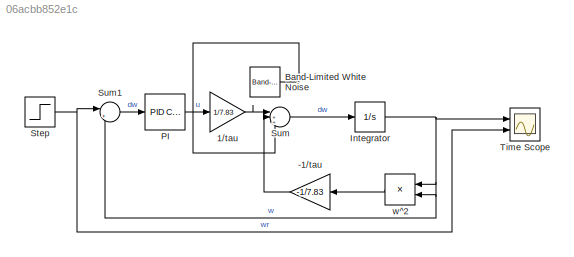
MODEL slx_06acbb852e1c
KIND model
CONFIG AbsTol = auto
CONFIG EnableMultiTasking = off
CONFIG FixedStep = auto
CONFIG MaxStep = auto
CONFIG MinStep = auto
CONFIG RelTol = 1e-3
CONFIG SampleTimeConstraint = Unconstrained
CONFIG Solver = VariableStepAuto
CONFIG SolverName = VariableStepAuto
CONFIG StartTime = 0.0
CONFIG StopTime = 60
BLOCK [Gain] -1//tau
  Gain = -1/7.83
BLOCK [Gain] 1//tau
  Gain = 1/7.83
BLOCK [Reference] Band-Limited White Noise  REF=simulink/Sources/Band-Limited
White Noise
  Ports = [0, 1]
  SourceBlock = simulink/Sources/Band-Limited\nWhite Noise
  SourceProductBaseCode = SL
  SourceType = Band-Limited White Noise.
BLOCK [Integrator] Integrator
  Ports = [1, 1]
BLOCK [Reference] PI  REF=simulink/Continuous/PID Controller
  Ports = [1, 1]
  SourceBlock = simulink/Continuous/PID Controller
  SourceProductBaseCode = SL
  SourceType = PID 1dof
BLOCK [Step] Step
  SampleTime = 0
  Time = 0
BLOCK [Sum] Sum
  Inputs = |+++
  Ports = [3, 1]
BLOCK [Sum] Sum1
  Inputs = |+-
  Ports = [2, 1]
BLOCK [Scope] Time Scope
  DefaultConfigurationName = spbscopes.TimeScopeBlockCfg
  Floating = off
  NumInputPorts = 2
  Ports = [2]
  ScopeSpecificationString = spbscopes.TimeScopeBlockCfg('CurrentConfiguration', extmgr.ConfigurationSet(extmgr.Configuration('Core','General UI',true),extmgr.Configuration('Core','Source UI',true),extmgr.Configuration('Sources','WiredSimulink',true),extmgr.Configuration('Visuals','Time Domain',true,'DisplayPropertyDefaults',struct('MinYLimReal','-0.18313','MaxYLimReal','1.64816','YLabelReal','Amplitude','MinYLimMag','0.00000...<+1739ch>
  UserDataPersistent = on
BLOCK [Product] w^2
  NameLocation = top
  Ports = [2, 1]
LINE -1//tau:1 -> Sum:2
LINE 1//tau:1 -> Sum:1
LINE Band-Limited White Noise:1 -> Sum:3
NET Integrator:1 -> Sum1:2, Time Scope:1, w^2:1, w^2:2
LINE PI:1 -> 1//tau:1
NET Step:1 -> Sum1:1, Time Scope:2
LINE Sum1:1 -> PI:1
LINE Sum:1 -> Integrator:1
LINE w^2:1 -> -1//tau:1
note: NET lines group one-source signal fan-out (src -> all destinations, sorted); 1:1 wires keep LINE
